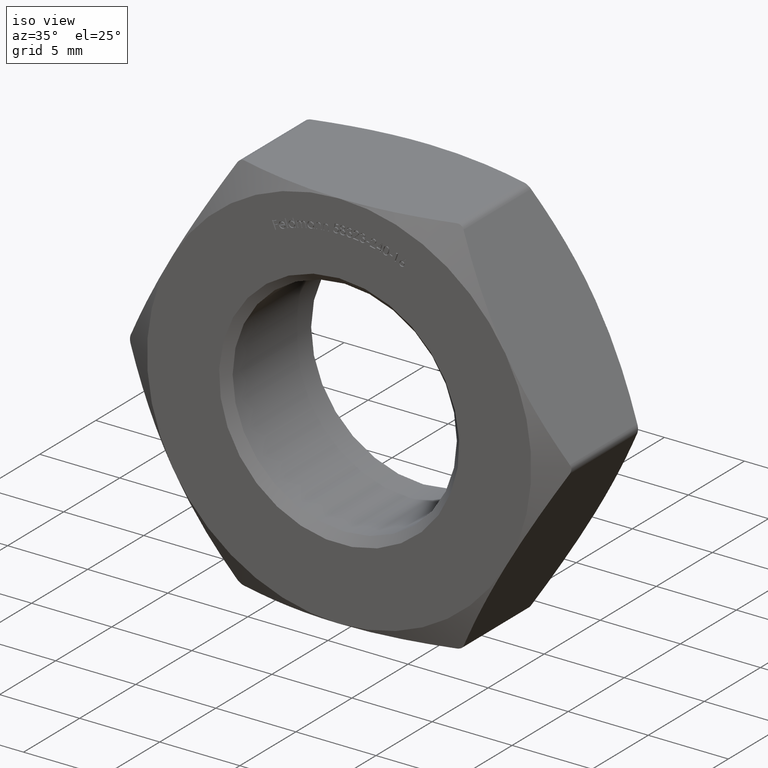
[diagram: clean part render]
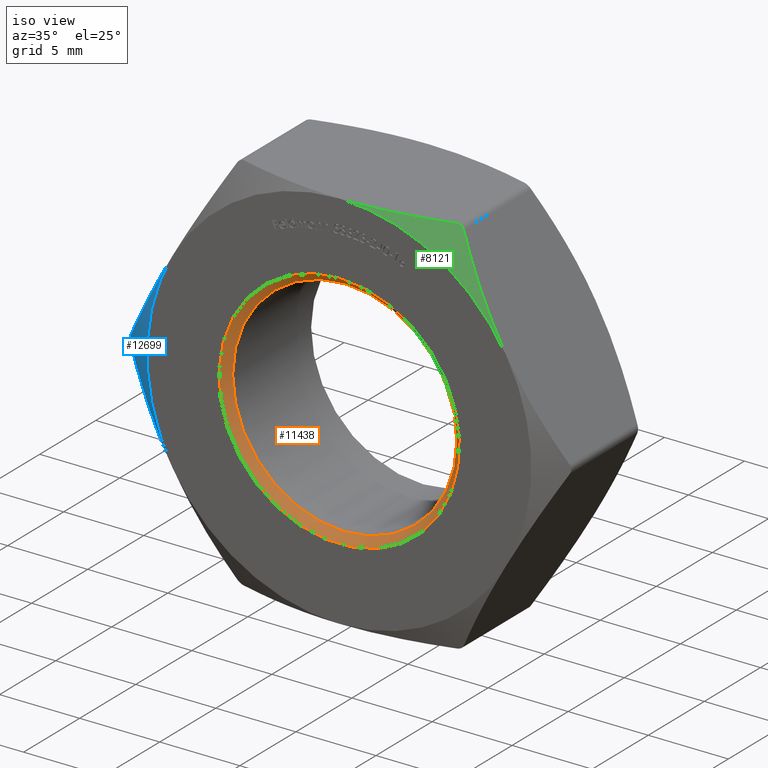
[diagram: same view with three faces highlighted in distinct colors, each labeled with its STEP entity id]
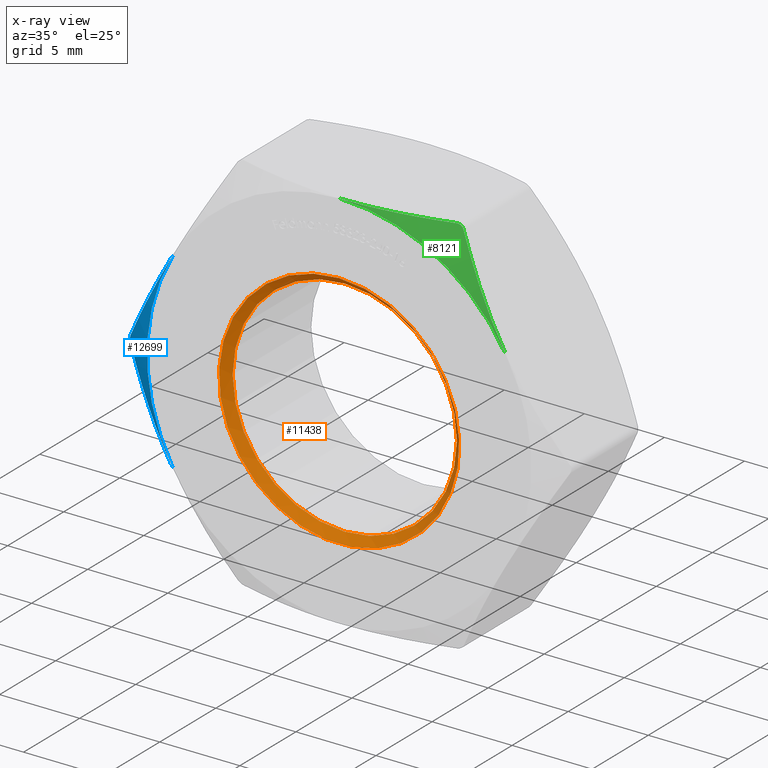
[diagram: x-ray of the same camera — body ghosted, the three highlighted faces saturated]
A machine part, iso view with three faces highlighted in distinct colors.
The next image is the same camera in x-ray (body ghosted, the three faces saturated) — at least one of them is partly hidden behind the body in this view.
Their STEP definitions:

[orange] entity #11438 — the highlighted conical surface has half-angle 45 deg.
#27 = DIRECTION ( 'NONE',  ( 0.0000000000000000000, 0.0000000000000000000, 1.000000000000000000 ) ) ;
#82 = CARTESIAN_POINT ( 'NONE',  ( 0.0000000000000000000, -3.499999999999994200, 0.0000000000000000000 ) ) ;
#292 = AXIS2_PLACEMENT_3D ( 'NONE', #82, #2698, #27 ) ;
#818 = EDGE_CURVE ( 'NONE', #1496, #1496, #9302, .T. ) ;
#1090 = VERTEX_POINT ( 'NONE', #5557 ) ;
#1496 = VERTEX_POINT ( 'NONE', #13291 ) ;
#2698 = DIRECTION ( 'NONE',  ( -0.0000000000000000000, -1.000000000000000000, -0.0000000000000000000 ) ) ;
#2707 = DIRECTION ( 'NONE',  ( -0.0000000000000000000, -1.000000000000000000, -0.0000000000000000000 ) ) ;
#5557 = CARTESIAN_POINT ( 'NONE',  ( 0.0000000000000000000, -4.000000000000000000, 7.500000000000000900 ) ) ;
#7005 = FACE_BOUND ( 'NONE', #9316, .T. ) ;
#7662 = DIRECTION ( 'NONE',  ( 0.0000000000000000000, 0.0000000000000000000, 1.000000000000000000 ) ) ;
#9092 = DIRECTION ( 'NONE',  ( 0.0000000000000000000, 1.000000000000000000, 0.0000000000000000000 ) ) ;
#9302 = CIRCLE ( 'NONE', #292, 6.999999999999998200 ) ;
#9316 = EDGE_LOOP ( 'NONE', ( #13032 ) ) ;
#9782 = CIRCLE ( 'NONE', #10742, 7.500000000000000900 ) ;
#10742 = AXIS2_PLACEMENT_3D ( 'NONE', #15375, #9092, #7662 ) ;
#11438 = ADVANCED_FACE ( 'NONE', ( #7005, #16774 ), #15730, .F. ) ;
#12082 = ORIENTED_EDGE ( 'NONE', *, *, #16650, .F. ) ;
#12764 = AXIS2_PLACEMENT_3D ( 'NONE', #16801, #2707, #12960 ) ;
#12960 = DIRECTION ( 'NONE',  ( 0.0000000000000000000, 0.0000000000000000000, -1.000000000000000000 ) ) ;
#13032 = ORIENTED_EDGE ( 'NONE', *, *, #818, .F. ) ;
#13291 = CARTESIAN_POINT ( 'NONE',  ( 0.0000000000000000000, -3.499999999999994200, 6.999999999999998200 ) ) ;
#15375 = CARTESIAN_POINT ( 'NONE',  ( 0.0000000000000000000, -4.000000000000000000, 0.0000000000000000000 ) ) ;
#15730 = CONICAL_SURFACE ( 'NONE', #12764, 7.500000000000000900, 0.7853981633974447300 ) ;
#16361 = EDGE_LOOP ( 'NONE', ( #12082 ) ) ;
#16650 = EDGE_CURVE ( 'NONE', #1090, #1090, #9782, .T. ) ;
#16774 = FACE_OUTER_BOUND ( 'NONE', #16361, .T. ) ;
#16801 = CARTESIAN_POINT ( 'NONE',  ( 0.0000000000000000000, -4.000000000000000000, 0.0000000000000000000 ) ) ;

[blue] entity #12699 — the highlighted conical surface has half-angle 60 deg.
#261 = CARTESIAN_POINT ( 'NONE',  ( -10.39230484541326400, -4.000000000000000000, 6.000000000000001800 ) ) ;
#387 = CARTESIAN_POINT ( 'NONE',  ( -4.494986686778388400E-017, -4.000000000000000000, 0.0000000000000000000 ) ) ;
#670 = ORIENTED_EDGE ( 'NONE', *, *, #11953, .F. ) ;
#947 = CONICAL_SURFACE ( 'NONE', #5502, 12.00000000000000200, 1.047197551196603400 ) ;
#1086 = AXIS2_PLACEMENT_3D ( 'NONE', #5945, #2415, #4893 ) ;
#1143 = B_SPLINE_CURVE_WITH_KNOTS ( 'NONE', 3,
 ( #2829, #14300, #2880, #10511, #6596, #4138 ),
 .UNSPECIFIED., .F., .F.,
 ( 4, 2, 4 ),
 ( 0.0002976420579474632700, 0.003654043546377305400, 0.007010445034807148200 ),
 .UNSPECIFIED. ) ;
#1155 = ORIENTED_EDGE ( 'NONE', *, *, #3487, .F. ) ;
#2415 = DIRECTION ( 'NONE',  ( -0.0000000000000000000, -1.000000000000000000, -0.0000000000000000000 ) ) ;
#2829 = CARTESIAN_POINT ( 'NONE',  ( -13.71206889325392800, -3.010220883462210800, 0.2499999999994580200 ) ) ;
#2880 = CARTESIAN_POINT ( 'NONE',  ( -12.62147978884749100, -3.562901251027050800, 2.138955739012447800 ) ) ;
#3487 = EDGE_CURVE ( 'NONE', #14835, #15617, #1143, .T. ) ;
#4138 = CARTESIAN_POINT ( 'NONE',  ( -10.39230484541326400, -4.000000000000000000, 6.000000000000001800 ) ) ;
#4604 = EDGE_CURVE ( 'NONE', #6865, #7388, #5394, .T. ) ;
#4619 = DIRECTION ( 'NONE',  ( 1.000000000000000000, 0.0000000000000000000, 0.0000000000000000000 ) ) ;
#4750 = CARTESIAN_POINT ( 'NONE',  ( -13.71206889325361200, -3.010220883462388000, -0.2499999999999961100 ) ) ;
#4809 = CIRCLE ( 'NONE', #1086, 12.00000000000000000 ) ;
#4893 = DIRECTION ( 'NONE',  ( 0.0000000000000000000, 0.0000000000000000000, 1.000000000000000000 ) ) ;
#4975 = CARTESIAN_POINT ( 'NONE',  ( -13.77897635095642100, -2.972905852214858600, 0.08857185176793223900 ) ) ;
#5197 = B_SPLINE_CURVE_WITH_KNOTS ( 'NONE', 3,
 ( #8868, #8749, #4975, #10108, #12639, #4750 ),
 .UNSPECIFIED., .F., .F.,
 ( 4, 2, 4 ),
 ( 6.108408149686373900E-016, 0.0002638430375142714600, 0.0005276860750279320800 ),
 .UNSPECIFIED. ) ;
#5394 = B_SPLINE_CURVE_WITH_KNOTS ( 'NONE', 3,
 ( #13230, #5601, #6791, #6900, #5494, #15965, #9468, #13339 ),
 .UNSPECIFIED., .F., .F.,
 ( 4, 2, 2, 4 ),
 ( 0.007010445034807149900, 0.008682192066603526500, 0.01035393909839990200, 0.01369743316199265700 ),
 .UNSPECIFIED. ) ;
#5494 = CARTESIAN_POINT ( 'NONE',  ( -11.79426250169669600, -3.820028020092778300, -3.571738109256914000 ) ) ;
#5502 = AXIS2_PLACEMENT_3D ( 'NONE', #387, #15923, #4619 ) ;
#5601 = CARTESIAN_POINT ( 'NONE',  ( -10.67378928446765400, -4.000000000000010700, -5.512454650017772000 ) ) ;
#5945 = CARTESIAN_POINT ( 'NONE',  ( -4.494986686778388400E-017, -4.000000000000000000, 2.335663596253788600E-016 ) ) ;
#6119 = CARTESIAN_POINT ( 'NONE',  ( -13.71206889325392800, -3.010220883462210800, 0.2499999999994580200 ) ) ;
#6596 = CARTESIAN_POINT ( 'NONE',  ( -10.95744704231418600, -4.000000000000007100, 5.021145001466512000 ) ) ;
#6791 = CARTESIAN_POINT ( 'NONE',  ( -10.95658457648184500, -3.976788126677496000, -5.022638836107913300 ) ) ;
#6865 = VERTEX_POINT ( 'NONE', #13071 ) ;
#6900 = CARTESIAN_POINT ( 'NONE',  ( -11.51623569666507100, -3.886760395136420200, -4.053294661437723400 ) ) ;
#7388 = VERTEX_POINT ( 'NONE', #7498 ) ;
#7498 = CARTESIAN_POINT ( 'NONE',  ( -13.71206889325361200, -3.010220883462388000, -0.2499999999999961100 ) ) ;
#8012 = EDGE_CURVE ( 'NONE', #14835, #7388, #5197, .T. ) ;
#8404 = ORIENTED_EDGE ( 'NONE', *, *, #4604, .F. ) ;
#8749 = CARTESIAN_POINT ( 'NONE',  ( -13.75498456792436200, -2.986229937684950800, 0.1756678710291659800 ) ) ;
#8868 = CARTESIAN_POINT ( 'NONE',  ( -13.71206889325392800, -3.010220883462210800, 0.2499999999994580200 ) ) ;
#9468 = CARTESIAN_POINT ( 'NONE',  ( -13.17005630627476300, -3.313219605597453700, -1.188793338989205100 ) ) ;
#10108 = CARTESIAN_POINT ( 'NONE',  ( -13.77913562340730100, -2.972817233024210200, -0.08766812727413815500 ) ) ;
#10511 = CARTESIAN_POINT ( 'NONE',  ( -11.51586903937519000, -3.906434174578377000, 4.053929730492762400 ) ) ;
#11826 = EDGE_LOOP ( 'NONE', ( #1155, #13192, #8404, #670 ) ) ;
#11953 = EDGE_CURVE ( 'NONE', #15617, #6865, #4809, .T. ) ;
#12453 = FACE_OUTER_BOUND ( 'NONE', #11826, .T. ) ;
#12639 = CARTESIAN_POINT ( 'NONE',  ( -13.75500057916277500, -2.986220986998566800, -0.1756401387507391700 ) ) ;
#12699 = ADVANCED_FACE ( 'NONE', ( #12453 ), #947, .T. ) ;
#13071 = CARTESIAN_POINT ( 'NONE',  ( -10.39230484541326600, -4.000000000000000000, -6.000000000000000000 ) ) ;
#13192 = ORIENTED_EDGE ( 'NONE', *, *, #8012, .T. ) ;
#13230 = CARTESIAN_POINT ( 'NONE',  ( -10.39230484541326600, -4.000000000000000000, -6.000000000000000000 ) ) ;
#13339 = CARTESIAN_POINT ( 'NONE',  ( -13.71206889325361200, -3.010220883462388000, -0.2499999999999961100 ) ) ;
#14300 = CARTESIAN_POINT ( 'NONE',  ( -13.16874182128003100, -3.313954435900752700, 1.191070093785875600 ) ) ;
#14835 = VERTEX_POINT ( 'NONE', #6119 ) ;
#15617 = VERTEX_POINT ( 'NONE', #261 ) ;
#15923 = DIRECTION ( 'NONE',  ( 1.123746671694597100E-017, 1.000000000000000000, 0.0000000000000000000 ) ) ;
#15965 = CARTESIAN_POINT ( 'NONE',  ( -12.62355850601880100, -3.562063013138928400, -2.135355295257162800 ) ) ;

[green] entity #8121 — the highlighted conical surface has half-angle 60 deg.
#90 = CARTESIAN_POINT ( 'NONE',  ( 6.639528095680694800, -3.010220883462388900, 12.00000000000000000 ) ) ;
#1129 = B_SPLINE_CURVE_WITH_KNOTS ( 'NONE', 3,
 ( #9304, #12103, #16077, #7074, #8266, #16138 ),
 .UNSPECIFIED., .F., .F.,
 ( 4, 2, 4 ),
 ( 6.095918013215408900E-016, 0.0002638430375142720600, 0.0005276860750279344700 ),
 .UNSPECIFIED. ) ;
#1964 = EDGE_CURVE ( 'NONE', #11784, #4171, #8259, .T. ) ;
#2124 = CARTESIAN_POINT ( 'NONE',  ( 7.615867869546496700, -3.313954435900754400, 10.80892990621412700 ) ) ;
#2127 = DIRECTION ( 'NONE',  ( 1.000000000000000000, 0.0000000000000000000, 0.0000000000000000000 ) ) ;
#2183 = CARTESIAN_POINT ( 'NONE',  ( 8.163129901979040400, -3.562901251027053900, 9.861044260987554800 ) ) ;
#3725 = EDGE_LOOP ( 'NONE', ( #8496, #16722, #13748, #9685 ) ) ;
#3883 = FACE_OUTER_BOUND ( 'NONE', #3725, .T. ) ;
#4171 = VERTEX_POINT ( 'NONE', #5820 ) ;
#4179 = DIRECTION ( 'NONE',  ( 1.123746671694597100E-017, 1.000000000000000000, 0.0000000000000000000 ) ) ;
#4276 = CARTESIAN_POINT ( 'NONE',  ( 7.072540797572600900, -3.010220883462211700, 11.75000000000054500 ) ) ;
#4830 = CARTESIAN_POINT ( 'NONE',  ( 9.268740651451333100, -3.906434174578379700, 7.946070269507237600 ) ) ;
#5084 = CONICAL_SURFACE ( 'NONE', #12135, 12.00000000000000200, 1.047197551196603400 ) ;
#5732 = EDGE_CURVE ( 'NONE', #4171, #11467, #7961, .T. ) ;
#5820 = CARTESIAN_POINT ( 'NONE',  ( -4.494986686778388400E-017, -4.000000000000000000, 12.00000000000000200 ) ) ;
#5880 = B_SPLINE_CURVE_WITH_KNOTS ( 'NONE', 3,
 ( #8662, #2124, #2183, #4830, #5991, #14936 ),
 .UNSPECIFIED., .F., .F.,
 ( 4, 2, 4 ),
 ( 0.0002976420579474647900, 0.003654043546377307600, 0.007010445034807149900 ),
 .UNSPECIFIED. ) ;
#5991 = CARTESIAN_POINT ( 'NONE',  ( 9.827162648512342000, -4.000000000000008900, 6.978854998533489800 ) ) ;
#6868 = CARTESIAN_POINT ( 'NONE',  ( 1.122912357192194800, -3.977208455690129300, 12.00000000000000200 ) ) ;
#7074 = CARTESIAN_POINT ( 'NONE',  ( 6.813644986382036500, -2.972817233024210200, 11.97691555569892200 ) ) ;
#7961 = B_SPLINE_CURVE_WITH_KNOTS ( 'NONE', 3,
 ( #13303, #12010, #6868, #9268, #15769, #15930, #9485, #10778 ),
 .UNSPECIFIED., .F., .F.,
 ( 4, 2, 2, 4 ),
 ( 0.01936970057594181900, 0.02104774807343688300, 0.02272579557093194800, 0.02608189056592208000 ),
 .UNSPECIFIED. ) ;
#8121 = ADVANCED_FACE ( 'NONE', ( #3883 ), #5084, .T. ) ;
#8259 = CIRCLE ( 'NONE', #15008, 12.00000000000000200 ) ;
#8266 = CARTESIAN_POINT ( 'NONE',  ( 6.725391467499020100, -2.986220986998567200, 12.00000000000000000 ) ) ;
#8496 = ORIENTED_EDGE ( 'NONE', *, *, #15728, .F. ) ;
#8511 = CARTESIAN_POINT ( 'NONE',  ( 10.39230484541326600, -4.000000000000000000, 5.999999999999998200 ) ) ;
#8662 = CARTESIAN_POINT ( 'NONE',  ( 7.072540797572600900, -3.010220883462211700, 11.75000000000054500 ) ) ;
#9260 = CARTESIAN_POINT ( 'NONE',  ( -4.494986686778388400E-017, -4.000000000000000000, 0.0000000000000000000 ) ) ;
#9268 = CARTESIAN_POINT ( 'NONE',  ( 2.250940326994606900, -3.886546577122185700, 12.00000000000000200 ) ) ;
#9304 = CARTESIAN_POINT ( 'NONE',  ( 7.072540797572600900, -3.010220883462211700, 11.75000000000054500 ) ) ;
#9485 = CARTESIAN_POINT ( 'NONE',  ( 5.564852187614548000, -3.310606367744593800, 12.00000000000000200 ) ) ;
#9685 = ORIENTED_EDGE ( 'NONE', *, *, #1964, .F. ) ;
#10778 = CARTESIAN_POINT ( 'NONE',  ( 6.639528095680694800, -3.010220883462388900, 12.00000000000000000 ) ) ;
#11467 = VERTEX_POINT ( 'NONE', #90 ) ;
#11784 = VERTEX_POINT ( 'NONE', #8511 ) ;
#12010 = CARTESIAN_POINT ( 'NONE',  ( 0.5605972413833044700, -4.000000000000000900, 11.99999999999999800 ) ) ;
#12103 = CARTESIAN_POINT ( 'NONE',  ( 7.029625122902165100, -2.986229937684952600, 11.82433212897083400 ) ) ;
#12135 = AXIS2_PLACEMENT_3D ( 'NONE', #9260, #4179, #13089 ) ;
#13089 = DIRECTION ( 'NONE',  ( 1.000000000000000000, 0.0000000000000000000, 0.0000000000000000000 ) ) ;
#13303 = CARTESIAN_POINT ( 'NONE',  ( -4.494986686778388400E-017, -4.000000000000000000, 12.00000000000000200 ) ) ;
#13748 = ORIENTED_EDGE ( 'NONE', *, *, #5732, .F. ) ;
#14936 = CARTESIAN_POINT ( 'NONE',  ( 10.39230484541326600, -4.000000000000000000, 5.999999999999998200 ) ) ;
#14991 = DIRECTION ( 'NONE',  ( -1.123746671694597100E-017, -1.000000000000000000, -0.0000000000000000000 ) ) ;
#15008 = AXIS2_PLACEMENT_3D ( 'NONE', #16370, #14991, #2127 ) ;
#15568 = VERTEX_POINT ( 'NONE', #4276 ) ;
#15642 = EDGE_CURVE ( 'NONE', #15568, #11467, #1129, .T. ) ;
#15728 = EDGE_CURVE ( 'NONE', #15568, #11784, #5880, .T. ) ;
#15769 = CARTESIAN_POINT ( 'NONE',  ( 2.812232842606245500, -3.818972809719021600, 12.00000000000000000 ) ) ;
#15930 = CARTESIAN_POINT ( 'NONE',  ( 4.476170215682653700, -3.559454543503305600, 11.99999999999999800 ) ) ;
#16077 = CARTESIAN_POINT ( 'NONE',  ( 6.966193649169466300, -2.972905852214858100, 11.88865763218930000 ) ) ;
#16138 = CARTESIAN_POINT ( 'NONE',  ( 6.639528095680694800, -3.010220883462388900, 12.00000000000000000 ) ) ;
#16370 = CARTESIAN_POINT ( 'NONE',  ( -4.494986686778388400E-017, -4.000000000000000000, 0.0000000000000000000 ) ) ;
#16722 = ORIENTED_EDGE ( 'NONE', *, *, #15642, .T. ) ;